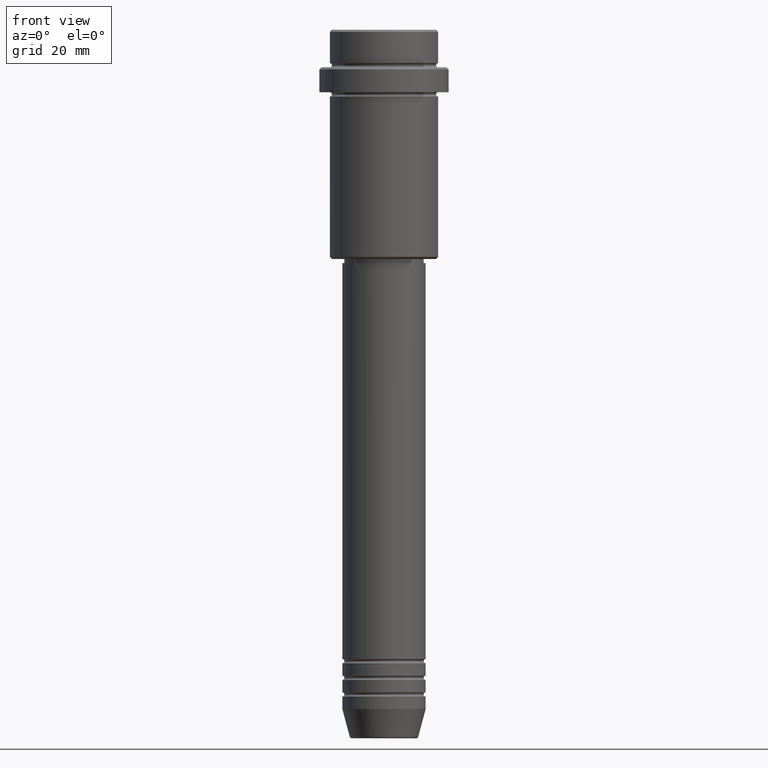
[diagram: clean part render]
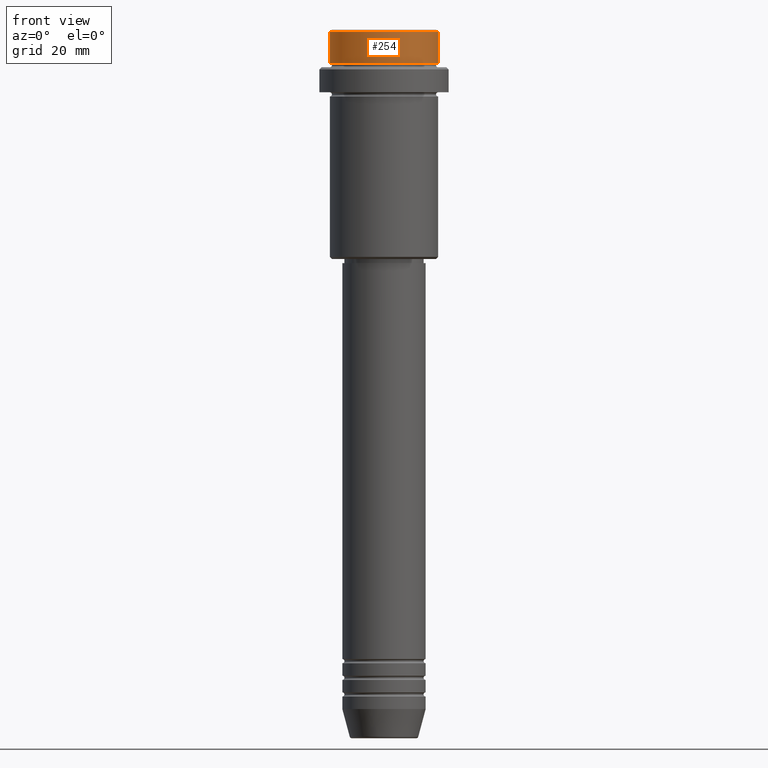
[diagram: same view with one face highlighted and labeled with its STEP entity id]
A machine part, front view. The second image highlights one B-rep face of the part: STEP entity #254.
In plain terms, the highlighted cylindrical surface (partial cylindrical patch) has radius 13 mm, axis along (-0, -0, 1).
Its self-contained STEP definition (entity closure, byte-faithful):
#18 = CIRCLE ( 'NONE', #817, 12.99999999999999822 ) ;
#37 = AXIS2_PLACEMENT_3D ( 'NONE', #1376, #1192, #635 ) ;
#91 = DIRECTION ( 'NONE',  ( -0.000000000000000000, -0.000000000000000000, 1.000000000000000000 ) ) ;
#93 = CARTESIAN_POINT ( 'NONE',  ( 12.99999999999999822, 0.000000000000000000, -0.4999999999999900080 ) ) ;
#98 = EDGE_CURVE ( 'NONE', #477, #784, #1048, .T. ) ;
#125 = VERTEX_POINT ( 'NONE', #632 ) ;
#128 = ORIENTED_EDGE ( 'NONE', *, *, #336, .F. ) ;
#234 = ORIENTED_EDGE ( 'NONE', *, *, #359, .T. ) ;
#254 = ADVANCED_FACE ( 'NONE', ( #1172 ), #417, .T. ) ;
#289 = AXIS2_PLACEMENT_3D ( 'NONE', #424, #91, #760 ) ;
#336 = EDGE_CURVE ( 'NONE', #1124, #125, #1278, .T. ) ;
#359 = EDGE_CURVE ( 'NONE', #1124, #477, #1272, .T. ) ;
#417 = CYLINDRICAL_SURFACE ( 'NONE', #289, 12.99999999999999822 ) ;
#424 = CARTESIAN_POINT ( 'NONE',  ( 0.000000000000000000, 0.000000000000000000, 0.000000000000000000 ) ) ;
#477 = VERTEX_POINT ( 'NONE', #1215 ) ;
#529 = CARTESIAN_POINT ( 'NONE',  ( 12.99999999999999822, 0.000000000000000000, 0.000000000000000000 ) ) ;
#534 = CARTESIAN_POINT ( 'NONE',  ( -12.99999999999999822, 1.592040838891558898E-15, -7.999999999999998224 ) ) ;
#612 = VECTOR ( 'NONE', #964, 1000.000000000000000 ) ;
#632 = CARTESIAN_POINT ( 'NONE',  ( -12.99999999999999822, 1.592040838891558898E-15, -0.4999999999999900080 ) ) ;
#635 = DIRECTION ( 'NONE',  ( 1.000000000000000000, 0.000000000000000000, 0.000000000000000000 ) ) ;
#738 = DIRECTION ( 'NONE',  ( 0.000000000000000000, 0.000000000000000000, -1.000000000000000000 ) ) ;
#760 = DIRECTION ( 'NONE',  ( 1.000000000000000000, 0.000000000000000000, 0.000000000000000000 ) ) ;
#784 = VERTEX_POINT ( 'NONE', #93 ) ;
#817 = AXIS2_PLACEMENT_3D ( 'NONE', #828, #738, #1386 ) ;
#826 = DIRECTION ( 'NONE',  ( -0.000000000000000000, -0.000000000000000000, 1.000000000000000000 ) ) ;
#828 = CARTESIAN_POINT ( 'NONE',  ( 0.000000000000000000, 0.000000000000000000, -0.4999999999999900080 ) ) ;
#964 = DIRECTION ( 'NONE',  ( -0.000000000000000000, -0.000000000000000000, 1.000000000000000000 ) ) ;
#980 = EDGE_LOOP ( 'NONE', ( #128, #234, #1095, #1171 ) ) ;
#1025 = VECTOR ( 'NONE', #826, 1000.000000000000000 ) ;
#1048 = LINE ( 'NONE', #529, #1025 ) ;
#1095 = ORIENTED_EDGE ( 'NONE', *, *, #98, .T. ) ;
#1124 = VERTEX_POINT ( 'NONE', #534 ) ;
#1171 = ORIENTED_EDGE ( 'NONE', *, *, #1218, .T. ) ;
#1172 = FACE_OUTER_BOUND ( 'NONE', #980, .T. ) ;
#1192 = DIRECTION ( 'NONE',  ( -0.000000000000000000, -0.000000000000000000, 1.000000000000000000 ) ) ;
#1215 = CARTESIAN_POINT ( 'NONE',  ( 12.99999999999999822, 0.000000000000000000, -7.999999999999998224 ) ) ;
#1218 = EDGE_CURVE ( 'NONE', #784, #125, #18, .T. ) ;
#1272 = CIRCLE ( 'NONE', #37, 12.99999999999999822 ) ;
#1278 = LINE ( 'NONE', #1397, #612 ) ;
#1376 = CARTESIAN_POINT ( 'NONE',  ( 0.000000000000000000, 0.000000000000000000, -7.999999999999998224 ) ) ;
#1386 = DIRECTION ( 'NONE',  ( 1.000000000000000000, 0.000000000000000000, 0.000000000000000000 ) ) ;
#1397 = CARTESIAN_POINT ( 'NONE',  ( -12.99999999999999822, 1.592040838891558898E-15, 0.000000000000000000 ) ) ;